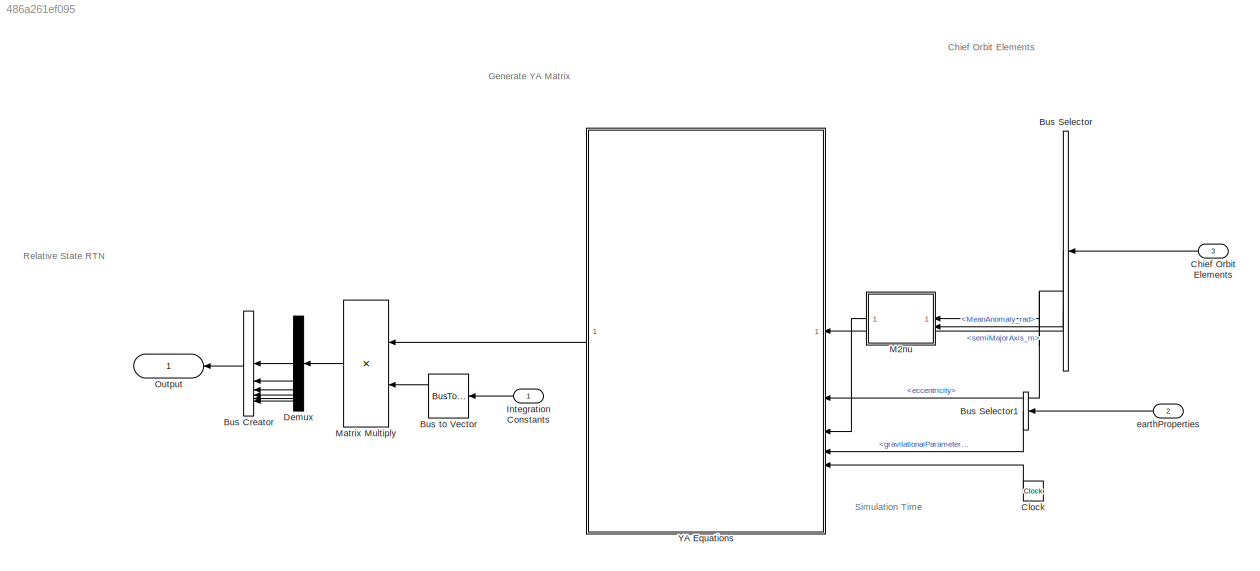
MODEL slx_486a261ef095
KIND model
CONFIG AbsTol = auto
CONFIG EnableMultiTasking = off
CONFIG FixedStep = dt
CONFIG MaxStep = auto
CONFIG MinStep = auto
CONFIG RelTol = 1e-3
CONFIG SampleTimeConstraint = Unconstrained
CONFIG SolverName = ode4
CONFIG StartTime = 0.0
CONFIG StopTime = 10.0
BLOCK [BusCreator] Bus Creator
  DisplayOption = bar
  InheritFromInputs = off
  Inputs = 6
  NonVirtualBus = on
  OutDataTypeStr = Bus: relativeCartesianState
BLOCK [BusSelector] Bus Selector
  OutputSignals = semiMajorAxis_m,eccentricity,MeanAnomaly_rad
BLOCK [BusSelector] Bus Selector1
  OutputSignals = gravitationalParameter_m3_s2
BLOCK [BusToVector] Bus to Vector
BLOCK [Inport] Chief Orbit Elements
  OutDataTypeStr = Bus: meanOrbitElements
  Port = 3
BLOCK [Clock] Clock
BLOCK [Demux] Demux
  Outputs = 6
BLOCK [Inport] Integration Constants
  OutDataTypeStr = Bus: integrationConstants_YA
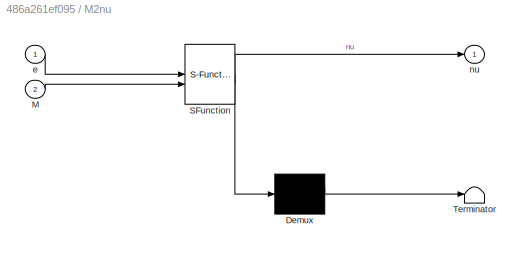
BLOCK [SubSystem] M2nu
  ErrorFcn = Stateflow.Translate.translate
  LibrarySourceBlock = simulink/User-Defined\nFunctions/MATLAB Function
  PermitHierarchicalResolution = ExplicitOnly
  SFBlockType = MATLAB Function
  TreatAsAtomicUnit = on
BLOCK [Demux] M2nu/ Demux 
  Outputs = 1
BLOCK [S-Function] M2nu/ SFunction 
  EnableBusSupport = on
  FunctionName = sf_sfun
  PortCounts = [2 2]
  SFcnIsStateOwnerBlock = off
  SFunctionDeploymentMode = off
  Tag = Stateflow S-Function 1
BLOCK [Terminator] M2nu/ Terminator 
BLOCK [Inport] M2nu/M
  Port = 2
BLOCK [Inport] M2nu/e
BLOCK [Outport] M2nu/nu
BLOCK [Product] Matrix Multiply
  Multiplication = Matrix(*)
BLOCK [Outport] Output
  OutDataTypeStr = Bus: relativeCartesianState
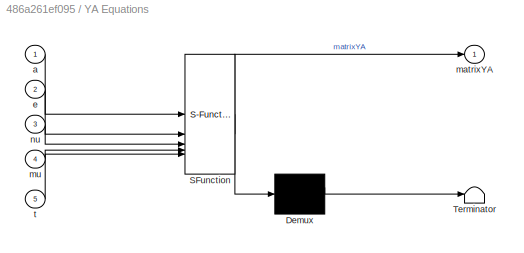
BLOCK [SubSystem] YA Equations
  ErrorFcn = Stateflow.Translate.translate
  LibrarySourceBlock = simulink/User-Defined\nFunctions/MATLAB Function
  PermitHierarchicalResolution = ExplicitOnly
  SFBlockType = MATLAB Function
  TreatAsAtomicUnit = on
BLOCK [Demux] YA Equations/ Demux 
  Outputs = 1
BLOCK [S-Function] YA Equations/ SFunction 
  EnableBusSupport = on
  FunctionName = sf_sfun
  PortCounts = [5 2]
  SFcnIsStateOwnerBlock = off
  SFunctionDeploymentMode = off
  Tag = Stateflow S-Function 2
BLOCK [Terminator] YA Equations/ Terminator 
BLOCK [Inport] YA Equations/a
BLOCK [Inport] YA Equations/e
  Port = 2
BLOCK [Outport] YA Equations/matrixYA
BLOCK [Inport] YA Equations/mu
  Port = 4
BLOCK [Inport] YA Equations/nu
  Port = 3
BLOCK [Inport] YA Equations/t
  Port = 5
BLOCK [Inport] earthProperties
  OutDataTypeStr = Bus: earthProperties
  Port = 2
ANNOTATION (root): Chief Orbit Elements
ANNOTATION (root): Generate YA Matrix
ANNOTATION (root): Relative State RTN
ANNOTATION (root): Simulation Time
LINE Bus Creator:1 -> Output:1
LINE Bus Selector1:1 -> YA Equations:4
LINE Bus Selector:1 -> YA Equations:1
NET Bus Selector:2 -> M2nu:1, YA Equations:2
LINE Bus Selector:3 -> M2nu:2
LINE Bus to Vector:1 -> Matrix Multiply:2
LINE Chief Orbit Elements:1 -> Bus Selector:1
LINE Clock:1 -> YA Equations:5
LINE Demux:1 -> Bus Creator:1
LINE Demux:2 -> Bus Creator:2
LINE Demux:3 -> Bus Creator:3
LINE Demux:4 -> Bus Creator:4
LINE Demux:5 -> Bus Creator:5
LINE Demux:6 -> Bus Creator:6
LINE Integration Constants:1 -> Bus to Vector:1
LINE M2nu:1 -> YA Equations:3
LINE Matrix Multiply:1 -> Demux:1
LINE YA Equations:1 -> Matrix Multiply:1
LINE earthProperties:1 -> Bus Selector1:1
note: NET lines group one-source signal fan-out (src -> all destinations, sorted); 1:1 wires keep LINE
CHART M2nu states=1 transitions=1
  STATE_LABEL 'eML_blk_kernel()'
  STATE_LABEL 'SCRIPT:\nfunction nu = M2nu(e,M)\nnu = M2nu(M,e);\nend\n'
CHART YA Equations states=1 transitions=1
  STATE_LABEL 'eML_blk_kernel()'
  STATE_LABEL 'SCRIPT:\nfunction matrixYA = cartesianYASolution(a, e, nu, mu, t)\n\nmatrixYA = cartesianYASolution(a, e, nu, t, mu);\n\nend\n'
CHART  states=0 transitions=0
CHART  states=0 transitions=0
